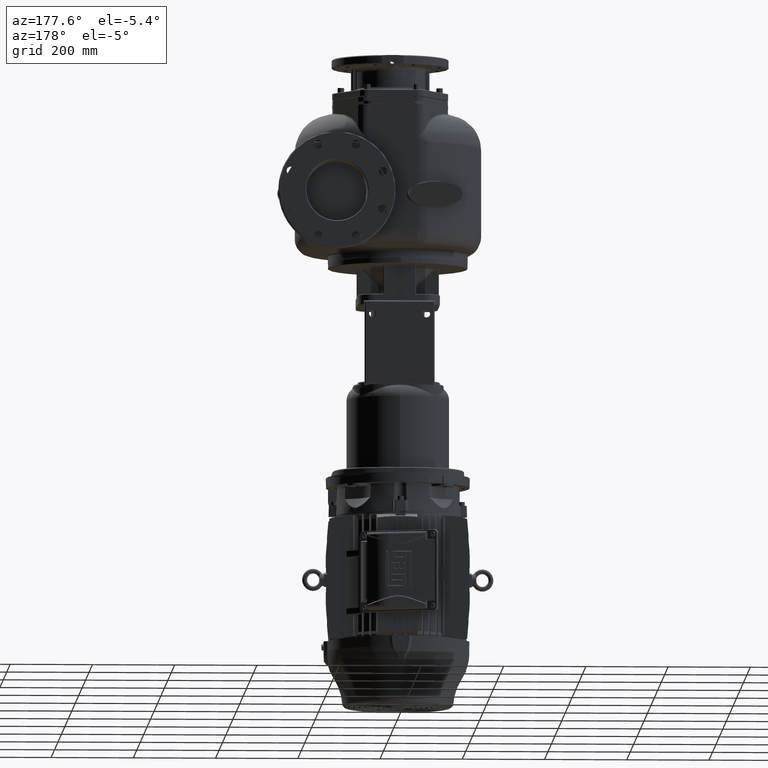
[diagram: clean part render]
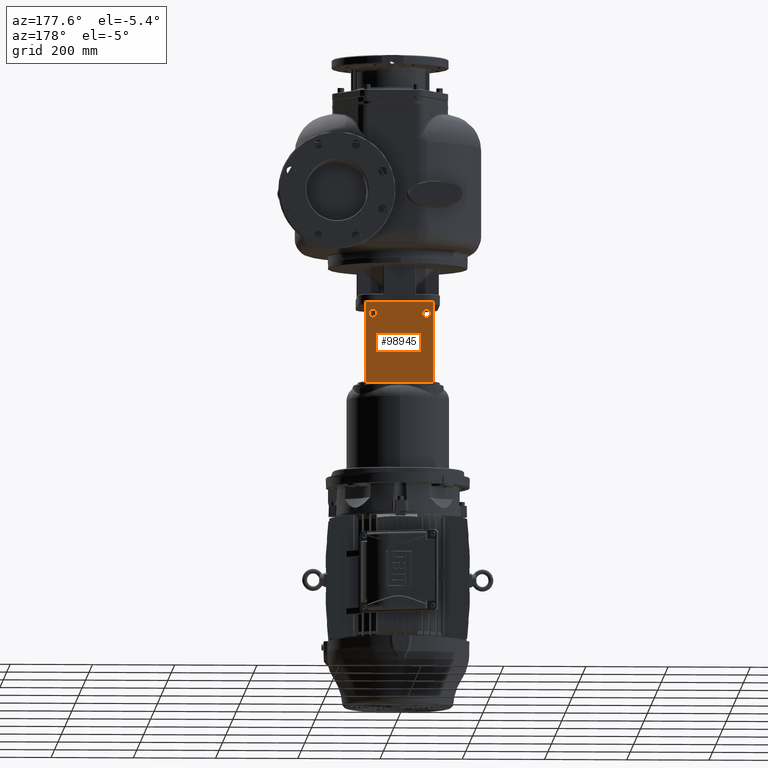
[diagram: same view with one face highlighted and labeled with its STEP entity id]
A machine part, auxiliary view. The second image highlights one B-rep face of the part: STEP entity #98945.
In plain terms, the highlighted planar face has unit normal (0, 1, 0).
Its self-contained STEP definition (entity closure, byte-faithful):
#34469=DIRECTION('',(-1.E0,0.E0,0.E0));
#34470=VECTOR('',#34469,1.64E2);
#34471=CARTESIAN_POINT('',(8.2E1,3.42E2,-4.765E2));
#34472=LINE('',#34471,#34470);
#34473=CARTESIAN_POINT('',(8.2E1,3.42E2,-2.795E2));
#34474=CARTESIAN_POINT('',(8.2E1,3.42E2,-3.451666666667E2));
#34475=CARTESIAN_POINT('',(8.2E1,3.42E2,-4.108333333333E2));
#34476=CARTESIAN_POINT('',(8.2E1,3.42E2,-4.765E2));
#34478=DIRECTION('',(1.E0,0.E0,0.E0));
#34479=VECTOR('',#34478,1.64E2);
#34480=CARTESIAN_POINT('',(-8.2E1,3.42E2,-2.795E2));
#34481=LINE('',#34480,#34479);
#34482=CARTESIAN_POINT('',(-8.2E1,3.42E2,-4.765E2));
#34483=CARTESIAN_POINT('',(-8.2E1,3.42E2,-4.108333333333E2));
#34484=CARTESIAN_POINT('',(-8.2E1,3.42E2,-3.451666666667E2));
#34485=CARTESIAN_POINT('',(-8.2E1,3.42E2,-2.795E2));
#34487=CARTESIAN_POINT('',(-6.5E1,3.42E2,-3.075E2));
#34488=DIRECTION('',(0.E0,1.E0,0.E0));
#34489=DIRECTION('',(0.E0,0.E0,1.E0));
#34490=AXIS2_PLACEMENT_3D('',#34487,#34488,#34489);
#34492=CARTESIAN_POINT('',(-6.5E1,3.42E2,-3.075E2));
#34493=DIRECTION('',(0.E0,1.E0,0.E0));
#34494=DIRECTION('',(0.E0,0.E0,-1.E0));
#34495=AXIS2_PLACEMENT_3D('',#34492,#34493,#34494);
#34497=CARTESIAN_POINT('',(6.5E1,3.42E2,-3.075E2));
#34498=DIRECTION('',(0.E0,1.E0,0.E0));
#34499=DIRECTION('',(0.E0,0.E0,1.E0));
#34500=AXIS2_PLACEMENT_3D('',#34497,#34498,#34499);
#34502=CARTESIAN_POINT('',(6.5E1,3.42E2,-3.075E2));
#34503=DIRECTION('',(0.E0,1.E0,0.E0));
#34504=DIRECTION('',(0.E0,0.E0,-1.E0));
#34505=AXIS2_PLACEMENT_3D('',#34502,#34503,#34504);
#56202=CARTESIAN_POINT('',(8.2E1,3.42E2,-4.765E2));
#56203=CARTESIAN_POINT('',(-8.2E1,3.42E2,-4.765E2));
#56204=VERTEX_POINT('',#56202);
#56205=VERTEX_POINT('',#56203);
#56210=CARTESIAN_POINT('',(-8.2E1,3.42E2,-2.795E2));
#56211=CARTESIAN_POINT('',(8.2E1,3.42E2,-2.795E2));
#56212=VERTEX_POINT('',#56210);
#56213=VERTEX_POINT('',#56211);
#56358=CARTESIAN_POINT('',(-6.5E1,3.42E2,-2.98E2));
#56359=CARTESIAN_POINT('',(-6.5E1,3.42E2,-3.17E2));
#56360=VERTEX_POINT('',#56358);
#56361=VERTEX_POINT('',#56359);
#56362=CARTESIAN_POINT('',(6.5E1,3.42E2,-2.98E2));
#56363=CARTESIAN_POINT('',(6.5E1,3.42E2,-3.17E2));
#56364=VERTEX_POINT('',#56362);
#56365=VERTEX_POINT('',#56363);
#98921=CARTESIAN_POINT('',(0.E0,3.42E2,-3.745E2));
#98922=DIRECTION('',(0.E0,1.E0,0.E0));
#98923=DIRECTION('',(0.E0,0.E0,-1.E0));
#98924=AXIS2_PLACEMENT_3D('',#98921,#98922,#98923);
#98925=PLANE('',#98924);
#98926=ORIENTED_EDGE('',*,*,#97965,.F.);
#98927=ORIENTED_EDGE('',*,*,#98911,.F.);
#98928=ORIENTED_EDGE('',*,*,#98806,.F.);
#98930=ORIENTED_EDGE('',*,*,#98929,.F.);
#98931=EDGE_LOOP('',(#98926,#98927,#98928,#98930));
#98932=FACE_OUTER_BOUND('',#98931,.F.);
#98934=ORIENTED_EDGE('',*,*,#98933,.T.);
#98936=ORIENTED_EDGE('',*,*,#98935,.T.);
#98937=EDGE_LOOP('',(#98934,#98936));
#98938=FACE_BOUND('',#98937,.F.);
#98940=ORIENTED_EDGE('',*,*,#98939,.T.);
#98942=ORIENTED_EDGE('',*,*,#98941,.T.);
#98943=EDGE_LOOP('',(#98940,#98942));
#98944=FACE_BOUND('',#98943,.F.);
#98945=ADVANCED_FACE('',(#98932,#98938,#98944),#98925,.T.);
#34477=B_SPLINE_CURVE_WITH_KNOTS('',3,(#34473,#34474,#34475,#34476),
.UNSPECIFIED.,.F.,.F.,(4,4),(0.E0,1.E0),.UNSPECIFIED.);
#34486=B_SPLINE_CURVE_WITH_KNOTS('',3,(#34482,#34483,#34484,#34485),
.UNSPECIFIED.,.F.,.F.,(4,4),(0.E0,1.E0),.UNSPECIFIED.);
#34491=CIRCLE('',#34490,9.5E0);
#34496=CIRCLE('',#34495,9.5E0);
#34501=CIRCLE('',#34500,9.5E0);
#34506=CIRCLE('',#34505,9.5E0);
#97965=EDGE_CURVE('',#56204,#56205,#34472,.T.);
#98806=EDGE_CURVE('',#56212,#56213,#34481,.T.);
#98911=EDGE_CURVE('',#56213,#56204,#34477,.T.);
#98929=EDGE_CURVE('',#56205,#56212,#34486,.T.);
#98933=EDGE_CURVE('',#56360,#56361,#34491,.T.);
#98935=EDGE_CURVE('',#56361,#56360,#34496,.T.);
#98939=EDGE_CURVE('',#56364,#56365,#34501,.T.);
#98941=EDGE_CURVE('',#56365,#56364,#34506,.T.);